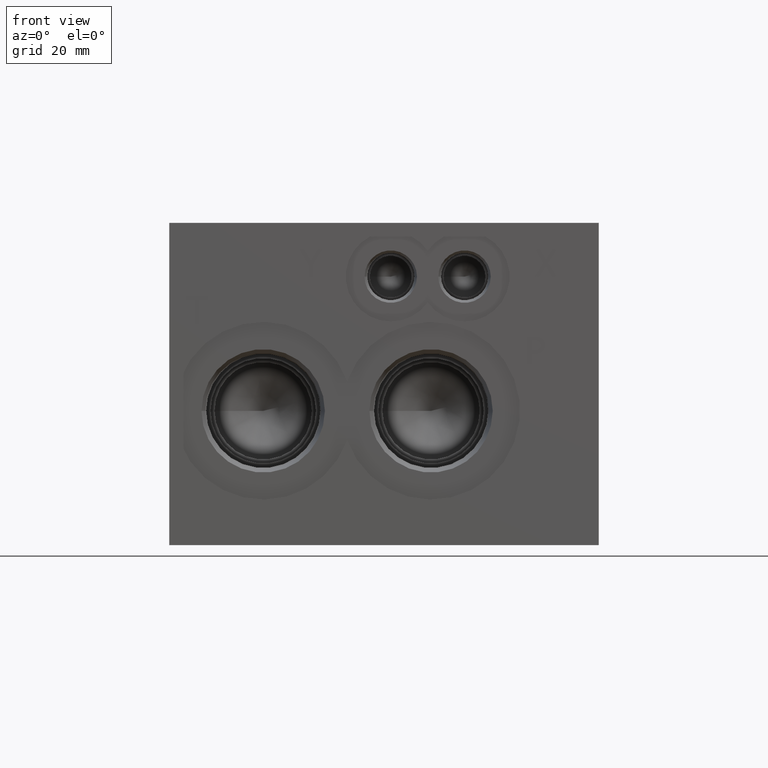
[diagram: clean part render]
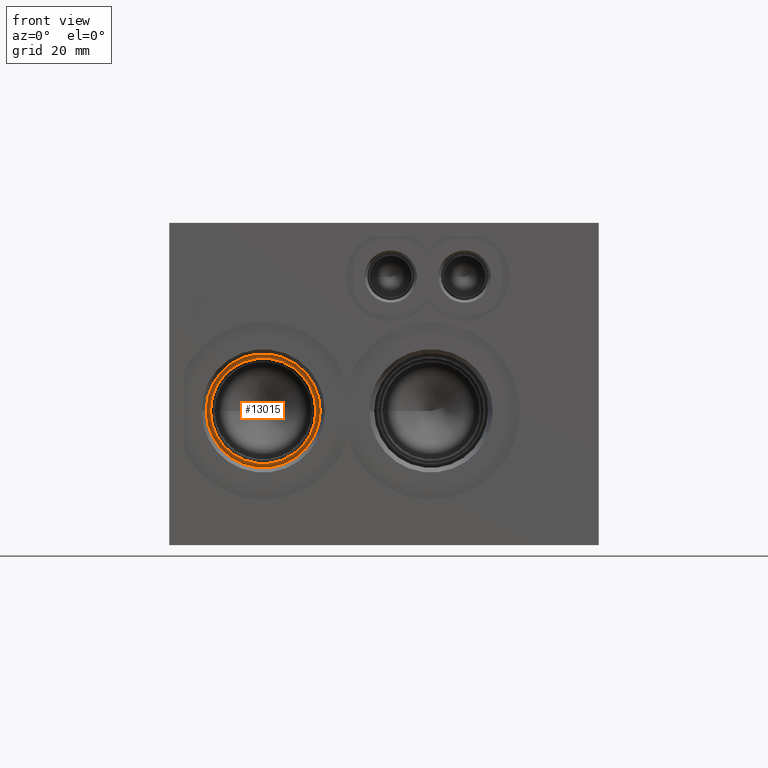
[diagram: same view with one face highlighted and labeled with its STEP entity id]
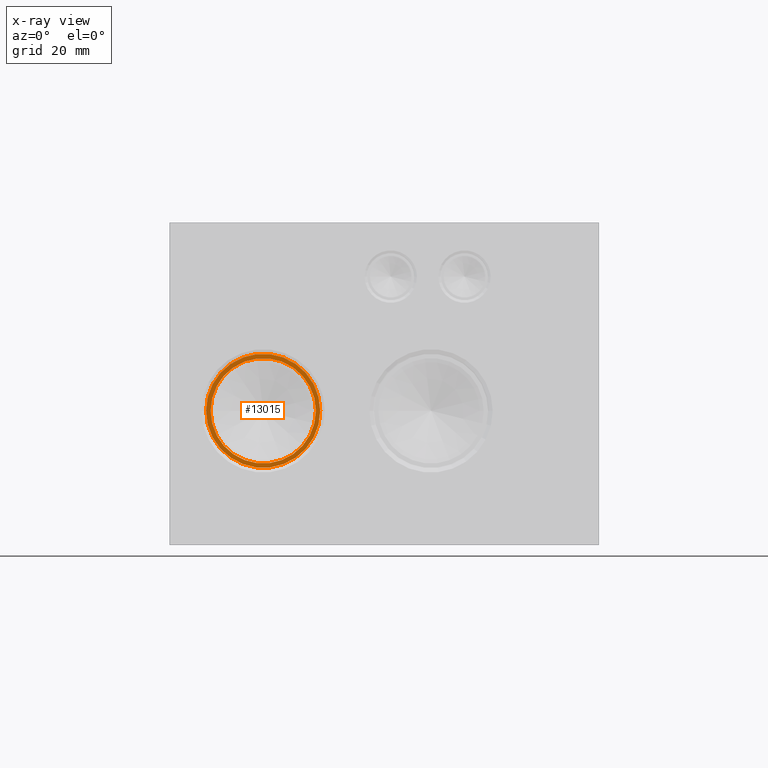
[diagram: x-ray of the same camera — body ghosted, the highlighted face saturated]
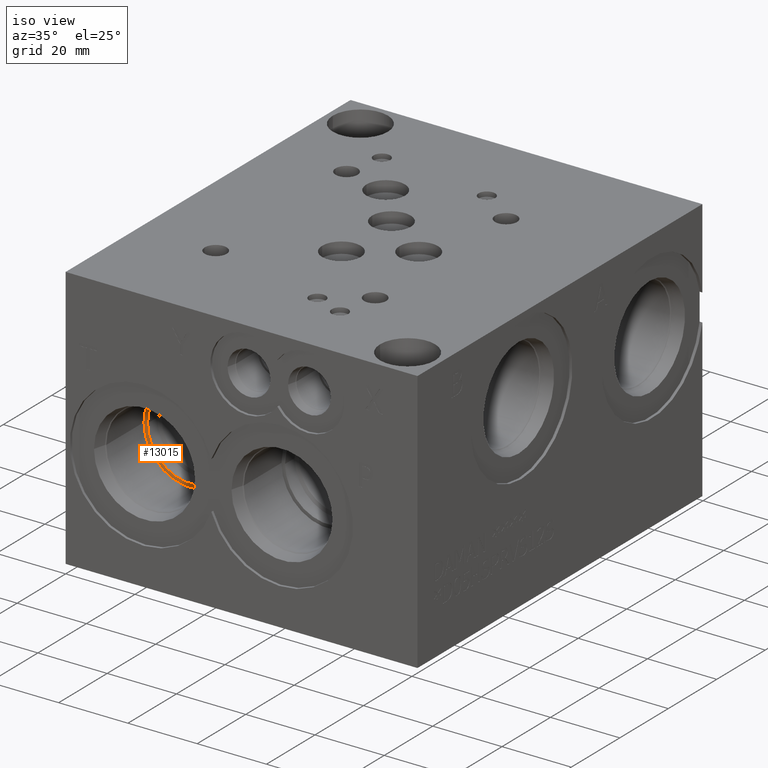
[diagram: same view with one face highlighted and labeled with its STEP entity id]
A machine part, front view. The second image highlights one B-rep face of the part: STEP entity #13015.
The next image is the same camera in x-ray: the body ghosted, the highlighted face saturated — about 0% of this face is hidden behind the body in this view.
A second angle (iso view) of the same face is appended — the face is thin or edge-on in the first view.
In plain terms, the highlighted planar face has unit normal (0, -1, 0).
Its self-contained STEP definition (entity closure, byte-faithful):
#264=CIRCLE('',#13670,13.495);
#265=CIRCLE('',#13671,13.495);
#266=CIRCLE('',#13672,12.4587);
#482=FACE_BOUND('',#2213,.T.);
#891=PLANE('',#13669);
#1485=FACE_OUTER_BOUND('',#2212,.T.);
#2212=EDGE_LOOP('',(#11271,#11272));
#2213=EDGE_LOOP('',(#11273));
#6180=VERTEX_POINT('',#21939);
#6181=VERTEX_POINT('',#21940);
#6182=VERTEX_POINT('',#21943);
#7933=EDGE_CURVE('',#6180,#6181,#264,.T.);
#7934=EDGE_CURVE('',#6181,#6180,#265,.T.);
#7935=EDGE_CURVE('',#6182,#6182,#266,.T.);
#11271=ORIENTED_EDGE('',*,*,#7933,.T.);
#11272=ORIENTED_EDGE('',*,*,#7934,.T.);
#11273=ORIENTED_EDGE('',*,*,#7935,.F.);
#13015=ADVANCED_FACE('',(#1485,#482),#891,.T.);
#13669=AXIS2_PLACEMENT_3D('',#21938,#16171,#16172);
#13670=AXIS2_PLACEMENT_3D('',#21941,#16173,#16174);
#13671=AXIS2_PLACEMENT_3D('',#21942,#16175,#16176);
#13672=AXIS2_PLACEMENT_3D('',#21944,#16177,#16178);
#16171=DIRECTION('center_axis',(0.,-1.,0.));
#16172=DIRECTION('ref_axis',(1.,0.,0.));
#16173=DIRECTION('center_axis',(0.,-1.,0.));
#16174=DIRECTION('ref_axis',(1.,0.,0.));
#16175=DIRECTION('center_axis',(0.,-1.,0.));
#16176=DIRECTION('ref_axis',(1.,0.,0.));
#16177=DIRECTION('center_axis',(0.,-1.,0.));
#16178=DIRECTION('ref_axis',(1.,0.,0.));
#21938=CARTESIAN_POINT('Origin',(22.225,19.8374,31.75));
#21939=CARTESIAN_POINT('',(35.72,19.8374,31.75));
#21940=CARTESIAN_POINT('',(8.73,19.8374,31.75));
#21941=CARTESIAN_POINT('Origin',(22.225,19.8374,31.75));
#21942=CARTESIAN_POINT('Origin',(22.225,19.8374,31.75));
#21943=CARTESIAN_POINT('',(9.7663,19.8374,31.75));
#21944=CARTESIAN_POINT('Origin',(22.225,19.8374,31.75));